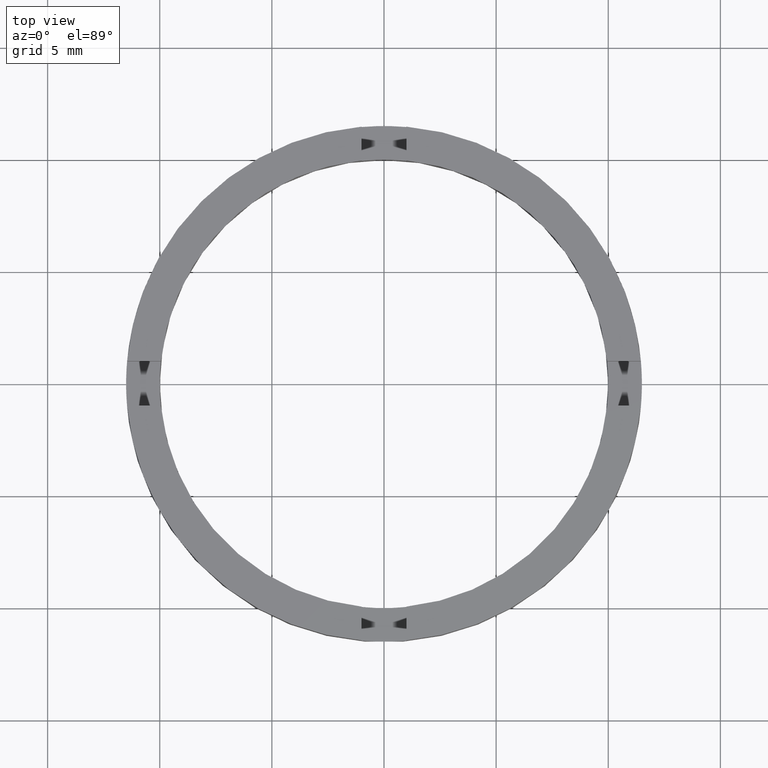
[diagram: clean part render]
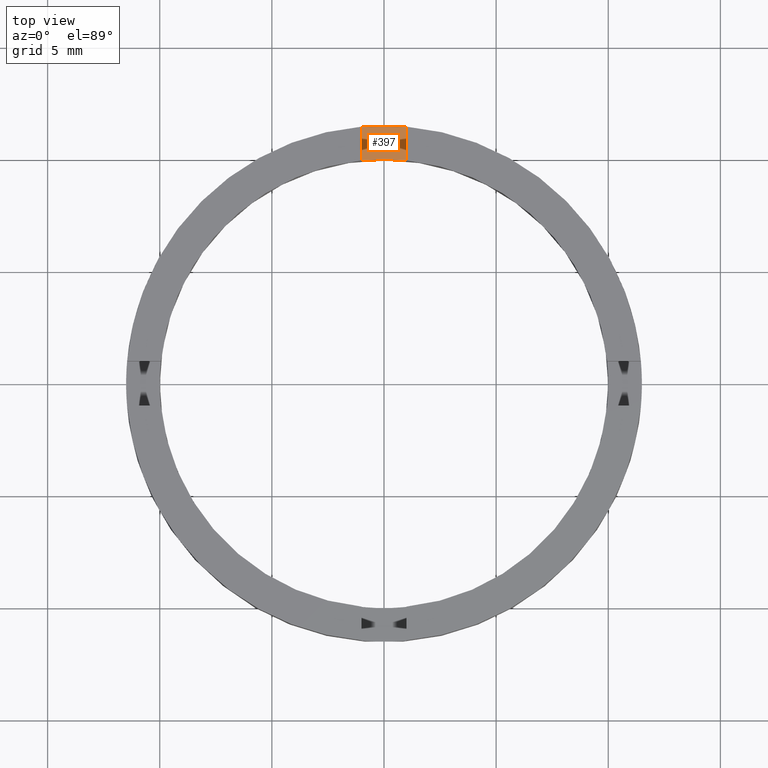
[diagram: same view with one face highlighted and labeled with its STEP entity id]
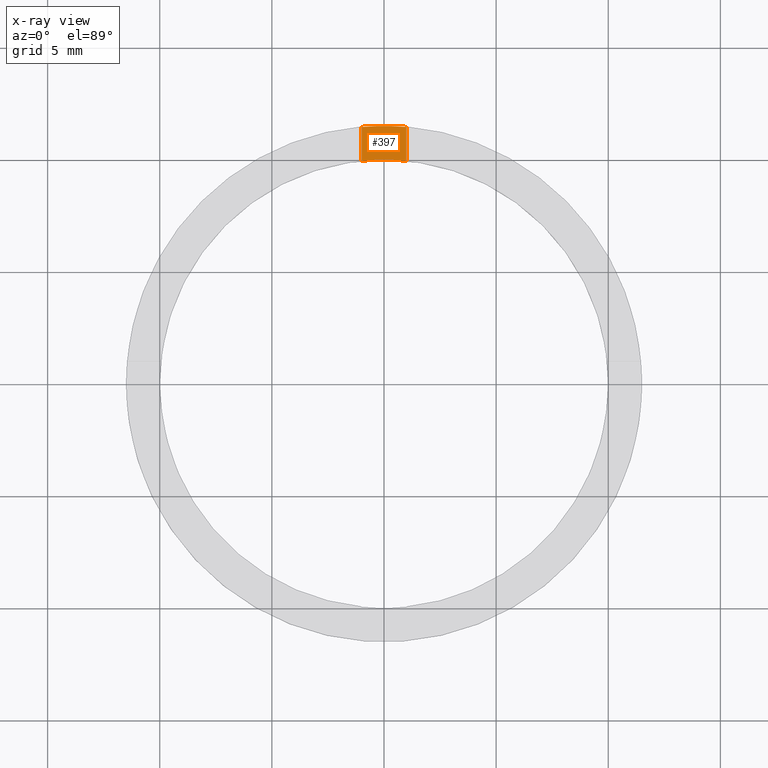
[diagram: x-ray of the same camera — body ghosted, the highlighted face saturated]
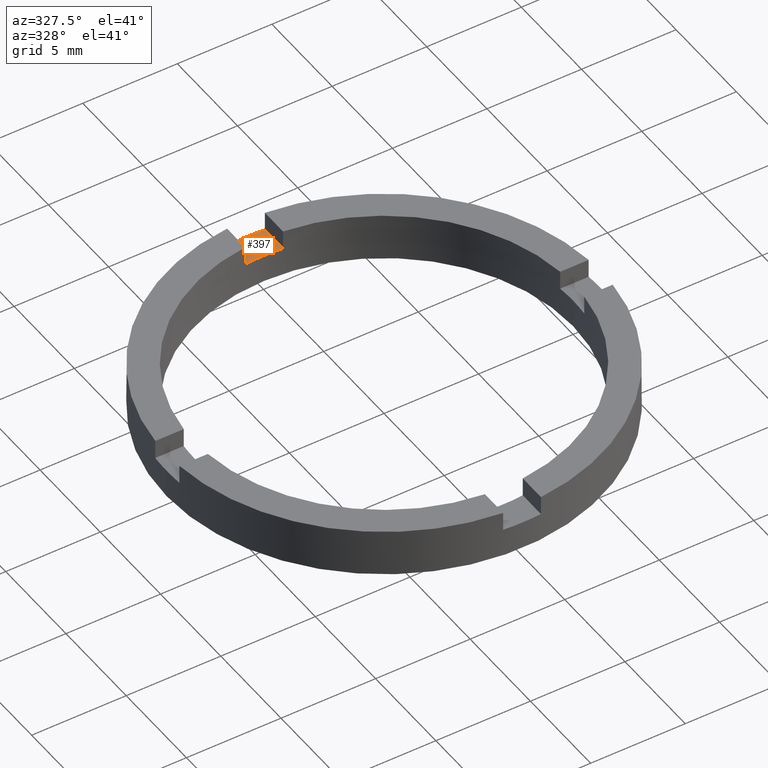
[diagram: same view with one face highlighted and labeled with its STEP entity id]
A machine part, top view. The second image highlights one B-rep face of the part: STEP entity #397.
The next image is the same camera in x-ray: the body ghosted, the highlighted face saturated — about 0% of this face is hidden behind the body in this view.
A second angle (auxiliary view) of the same face is appended — the face is thin or edge-on in the first view.
In plain terms, the highlighted planar face has unit normal (0, -0, 1).
Its self-contained STEP definition (entity closure, byte-faithful):
#55 = VERTEX_POINT ( 'NONE', #462 ) ;
#80 = EDGE_CURVE ( 'NONE', #243, #55, #165, .T. ) ;
#112 = EDGE_CURVE ( 'NONE', #255, #55, #700, .T. ) ;
#117 = VECTOR ( 'NONE', #683, 1000.000000000000000 ) ;
#133 = FACE_OUTER_BOUND ( 'NONE', #492, .T. ) ;
#165 = CIRCLE ( 'NONE', #535, 9.999999999999998224 ) ;
#182 = VECTOR ( 'NONE', #389, 1000.000000000000000 ) ;
#243 = VERTEX_POINT ( 'NONE', #556 ) ;
#255 = VERTEX_POINT ( 'NONE', #503 ) ;
#260 = CARTESIAN_POINT ( 'NONE',  ( 0.000000000000000000, 0.000000000000000000, 1.500000000000000000 ) ) ;
#267 = DIRECTION ( 'NONE',  ( 1.000000000000000000, 0.000000000000000000, 0.000000000000000000 ) ) ;
#305 = ORIENTED_EDGE ( 'NONE', *, *, #629, .T. ) ;
#324 = ORIENTED_EDGE ( 'NONE', *, *, #773, .T. ) ;
#331 = DIRECTION ( 'NONE',  ( 0.000000000000000000, -0.000000000000000000, 1.000000000000000000 ) ) ;
#351 = CARTESIAN_POINT ( 'NONE',  ( 0.9999999999999754641, 1.500000000000001332, 1.500000000000000000 ) ) ;
#352 = CARTESIAN_POINT ( 'NONE',  ( 0.000000000000000000, 0.000000000000000000, 1.500000000000000000 ) ) ;
#389 = DIRECTION ( 'NONE',  ( -0.000000000000000000, -1.000000000000000000, -0.000000000000000000 ) ) ;
#397 = ADVANCED_FACE ( 'NONE', ( #133 ), #746, .T. ) ;
#427 = CIRCLE ( 'NONE', #783, 11.50000000000000000 ) ;
#453 = DIRECTION ( 'NONE',  ( 0.000000000000000000, -0.000000000000000000, 1.000000000000000000 ) ) ;
#462 = CARTESIAN_POINT ( 'NONE',  ( -1.000000000000024425, 9.949874371066194101, 1.500000000000000000 ) ) ;
#492 = EDGE_LOOP ( 'NONE', ( #305, #526, #531, #324 ) ) ;
#503 = CARTESIAN_POINT ( 'NONE',  ( -1.000000000000024425, 11.45643923738959735, 1.500000000000000000 ) ) ;
#508 = VERTEX_POINT ( 'NONE', #620 ) ;
#526 = ORIENTED_EDGE ( 'NONE', *, *, #112, .T. ) ;
#531 = ORIENTED_EDGE ( 'NONE', *, *, #80, .F. ) ;
#535 = AXIS2_PLACEMENT_3D ( 'NONE', #352, #585, #267 ) ;
#556 = CARTESIAN_POINT ( 'NONE',  ( 0.9999999999999754641, 9.949874371066199430, 1.500000000000000000 ) ) ;
#572 = DIRECTION ( 'NONE',  ( 1.000000000000000000, 0.000000000000000000, -0.000000000000000000 ) ) ;
#585 = DIRECTION ( 'NONE',  ( 0.000000000000000000, -0.000000000000000000, 1.000000000000000000 ) ) ;
#620 = CARTESIAN_POINT ( 'NONE',  ( 0.9999999999999754641, 11.45643923738960090, 1.500000000000000000 ) ) ;
#622 = CARTESIAN_POINT ( 'NONE',  ( 0.000000000000000000, 0.000000000000000000, 1.500000000000000000 ) ) ;
#629 = EDGE_CURVE ( 'NONE', #508, #255, #427, .T. ) ;
#652 = LINE ( 'NONE', #351, #117 ) ;
#673 = DIRECTION ( 'NONE',  ( 1.000000000000000000, 0.000000000000000000, 0.000000000000000000 ) ) ;
#683 = DIRECTION ( 'NONE',  ( 0.000000000000000000, 1.000000000000000000, 0.000000000000000000 ) ) ;
#700 = LINE ( 'NONE', #760, #182 ) ;
#746 = PLANE ( 'NONE',  #781 ) ;
#760 = CARTESIAN_POINT ( 'NONE',  ( -1.000000000000024425, 1.500000000000001332, 1.500000000000000000 ) ) ;
#773 = EDGE_CURVE ( 'NONE', #243, #508, #652, .T. ) ;
#781 = AXIS2_PLACEMENT_3D ( 'NONE', #260, #331, #572 ) ;
#783 = AXIS2_PLACEMENT_3D ( 'NONE', #622, #453, #673 ) ;